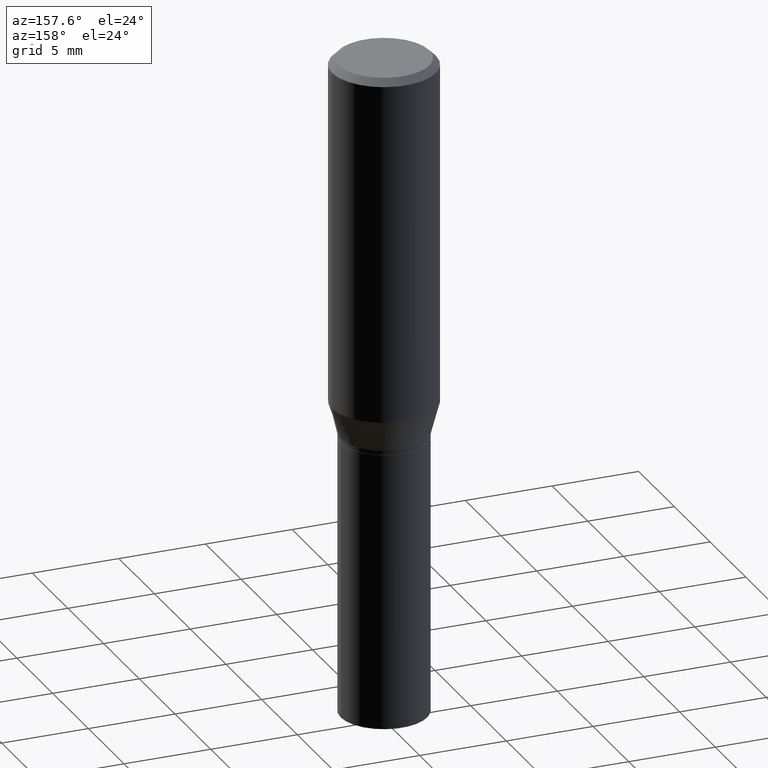
[diagram: clean part render]
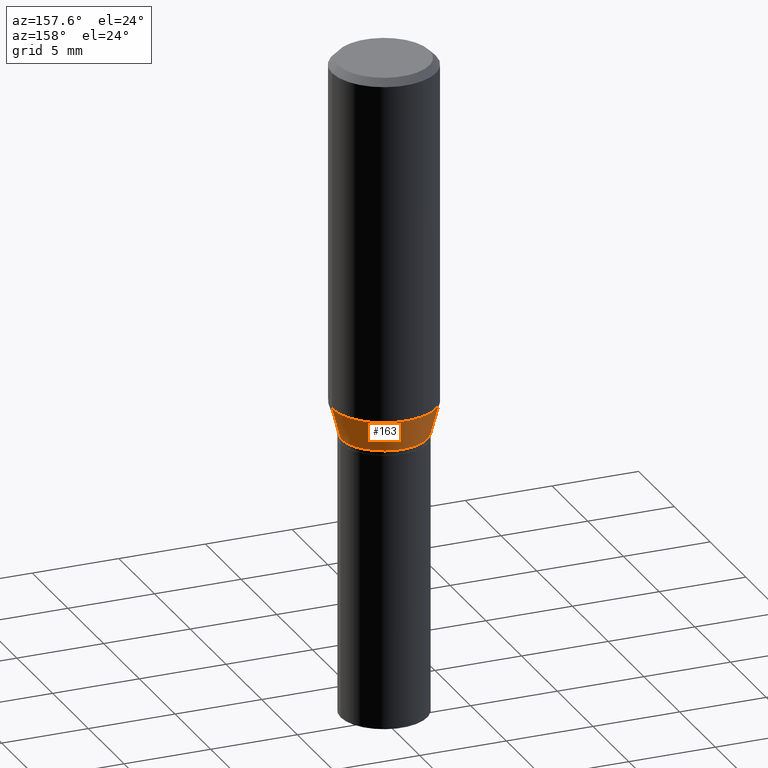
[diagram: same view with one face highlighted and labeled with its STEP entity id]
A machine part, auxiliary view. The second image highlights one B-rep face of the part: STEP entity #163.
In plain terms, the highlighted conical surface has half-angle 15 deg.
Its self-contained STEP definition (entity closure, byte-faithful):
#9 = AXIS2_PLACEMENT_3D ( 'NONE', #419, #382, #313 ) ;
#15 = VERTEX_POINT ( 'NONE', #115 ) ;
#30 = VECTOR ( 'NONE', #396, 39.37007874015748143 ) ;
#32 = DIRECTION ( 'NONE',  ( 1.000000000000000000, -6.982962677686267499E-15, 0.000000000000000000 ) ) ;
#41 = CARTESIAN_POINT ( 'NONE',  ( 1.924009758381236534E-29, -2.746976019546752715E-15, -0.7867652016312725038 ) ) ;
#68 = CARTESIAN_POINT ( 'NONE',  ( -0.1180999999999999966, -1.907825048614074518E-15, -0.7867652016312725038 ) ) ;
#87 = DIRECTION ( 'NONE',  ( 1.000000000000000000, -6.982962677686269077E-15, 0.000000000000000000 ) ) ;
#106 = LINE ( 'NONE', #325, #30 ) ;
#115 = CARTESIAN_POINT ( 'NONE',  ( 0.1180999999999999966, -3.571663911781501372E-15, -0.7867652016312725038 ) ) ;
#144 = CIRCLE ( 'NONE', #196, 0.09845000000000017626 ) ;
#163 = ADVANCED_FACE ( 'NONE', ( #232 ), #230, .T. ) ;
#169 = EDGE_CURVE ( 'NONE', #277, #398, #106, .T. ) ;
#171 = CARTESIAN_POINT ( 'NONE',  ( 0.09845000000000017626, -3.690495775157203695E-15, -0.8601000000000000867 ) ) ;
#172 = CIRCLE ( 'NONE', #199, 0.1180999999999999966 ) ;
#177 = EDGE_LOOP ( 'NONE', ( #234, #188, #386, #452 ) ) ;
#180 = EDGE_CURVE ( 'NONE', #218, #15, #205, .T. ) ;
#188 = ORIENTED_EDGE ( 'NONE', *, *, #169, .T. ) ;
#191 = VECTOR ( 'NONE', #210, 39.37007874015748143 ) ;
#196 = AXIS2_PLACEMENT_3D ( 'NONE', #425, #317, #32 ) ;
#199 = AXIS2_PLACEMENT_3D ( 'NONE', #41, #305, #87 ) ;
#205 = LINE ( 'NONE', #365, #191 ) ;
#210 = DIRECTION ( 'NONE',  ( 0.2588190451025215166, 1.565188264969620784E-15, 0.9659258262890679791 ) ) ;
#218 = VERTEX_POINT ( 'NONE', #171 ) ;
#230 = CONICAL_SURFACE ( 'NONE', #9, 0.09845000000000017626, 0.2617993877991502405 ) ;
#232 = FACE_OUTER_BOUND ( 'NONE', #177, .T. ) ;
#234 = ORIENTED_EDGE ( 'NONE', *, *, #272, .T. ) ;
#272 = EDGE_CURVE ( 'NONE', #218, #277, #144, .T. ) ;
#277 = VERTEX_POINT ( 'NONE', #286 ) ;
#286 = CARTESIAN_POINT ( 'NONE',  ( -0.09845000000000017626, -2.105659412398621996E-15, -0.8601000000000000867 ) ) ;
#305 = DIRECTION ( 'NONE',  ( -2.445468806185136597E-29, 3.491481338843145583E-15, 1.000000000000000000 ) ) ;
#313 = DIRECTION ( 'NONE',  ( 1.000000000000000000, -6.982962677686267499E-15, 0.000000000000000000 ) ) ;
#317 = DIRECTION ( 'NONE',  ( -2.445468806185136597E-29, 3.491481338843145583E-15, 1.000000000000000000 ) ) ;
#325 = CARTESIAN_POINT ( 'NONE',  ( -0.09845000000000017626, -2.303493776183169474E-15, -0.8601000000000000867 ) ) ;
#365 = CARTESIAN_POINT ( 'NONE',  ( 0.09845000000000017626, -3.690495775157203695E-15, -0.8601000000000000867 ) ) ;
#382 = DIRECTION ( 'NONE',  ( -2.445468806185136597E-29, 3.491481338843145583E-15, 1.000000000000000000 ) ) ;
#386 = ORIENTED_EDGE ( 'NONE', *, *, #409, .F. ) ;
#396 = DIRECTION ( 'NONE',  ( -0.2588190451025215166, 5.211531920934551042E-15, 0.9659258262890679791 ) ) ;
#398 = VERTEX_POINT ( 'NONE', #68 ) ;
#409 = EDGE_CURVE ( 'NONE', #15, #398, #172, .T. ) ;
#419 = CARTESIAN_POINT ( 'NONE',  ( 2.103347720199836269E-29, -3.003023099538989951E-15, -0.8601000000000000867 ) ) ;
#425 = CARTESIAN_POINT ( 'NONE',  ( 2.103347720199836269E-29, -3.003023099538989951E-15, -0.8601000000000000867 ) ) ;
#452 = ORIENTED_EDGE ( 'NONE', *, *, #180, .F. ) ;